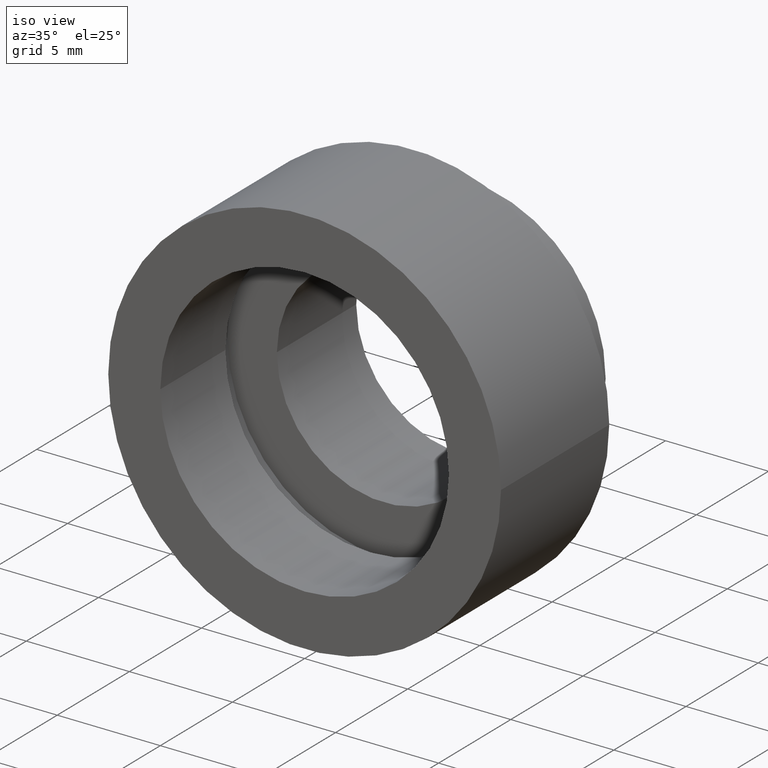
[diagram: clean part render]
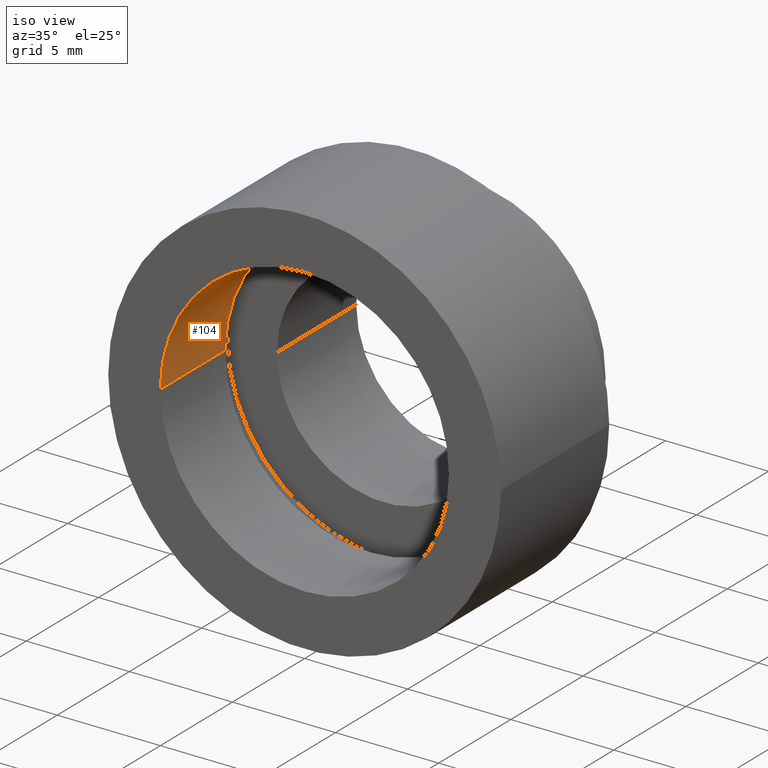
[diagram: same view with one face highlighted and labeled with its STEP entity id]
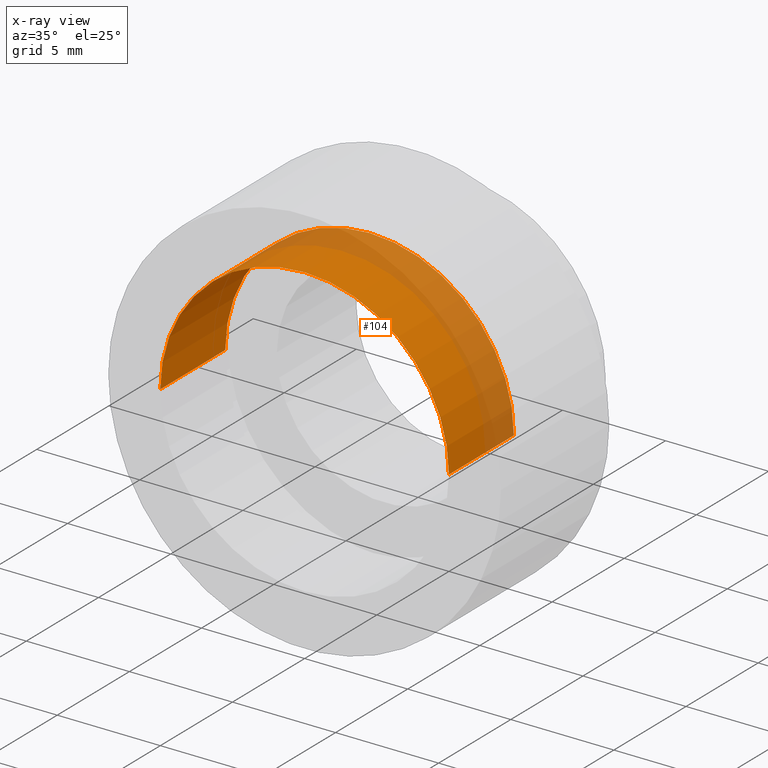
[diagram: x-ray of the same camera — body ghosted, the highlighted face saturated]
A machine part, iso view. The second image highlights one B-rep face of the part: STEP entity #104.
The next image is the same camera in x-ray: the body ghosted, the highlighted face saturated — about 36% of this face is hidden behind the body in this view.
In plain terms, the highlighted cylindrical surface (partial cylindrical patch) has radius 7 mm, axis along (-0, 1, -0).
Its self-contained STEP definition (entity closure, byte-faithful):
#20 = CARTESIAN_POINT ( 'NONE',  ( 2.067940818438636100E-015, 0.0000000000000000000, 0.0000000000000000000 ) ) ;
#32 = CARTESIAN_POINT ( 'NONE',  ( 0.0000000000000000000, 16.88601823708207700, 0.0000000000000000000 ) ) ;
#57 = DIRECTION ( 'NONE',  ( -1.224646799147351000E-016, 1.000000000000000000, -0.0000000000000000000 ) ) ;
#89 = EDGE_CURVE ( 'NONE', #326, #135, #225, .T. ) ;
#100 = CYLINDRICAL_SURFACE ( 'NONE', #167, 7.000000000000000000 ) ;
#104 = ADVANCED_FACE ( 'NONE', ( #398 ), #100, .F. ) ;
#105 = LINE ( 'NONE', #213, #431 ) ;
#116 = EDGE_CURVE ( 'NONE', #487, #135, #491, .T. ) ;
#135 = VERTEX_POINT ( 'NONE', #143 ) ;
#137 = CARTESIAN_POINT ( 'NONE',  ( 1.516849758822327900E-015, 4.500000000000000900, 0.0000000000000000000 ) ) ;
#143 = CARTESIAN_POINT ( 'NONE',  ( 7.000000000000001800, 4.500000000000001800, 8.572527594031473200E-016 ) ) ;
#153 = DIRECTION ( 'NONE',  ( -1.224646799147351000E-016, 1.000000000000000000, -0.0000000000000000000 ) ) ;
#165 = AXIS2_PLACEMENT_3D ( 'NONE', #20, #369, #168 ) ;
#167 = AXIS2_PLACEMENT_3D ( 'NONE', #32, #278, #470 ) ;
#168 = DIRECTION ( 'NONE',  ( -1.000000000000000000, -1.224646799147351000E-016, 0.0000000000000000000 ) ) ;
#194 = DIRECTION ( 'NONE',  ( -1.000000000000000000, -1.239088197126290800E-016, 0.0000000000000000000 ) ) ;
#213 = CARTESIAN_POINT ( 'NONE',  ( -7.000000000000000000, 16.88601823708207700, 0.0000000000000000000 ) ) ;
#215 = CARTESIAN_POINT ( 'NONE',  ( -6.999999999999998200, 4.500000000000000000, 0.0000000000000000000 ) ) ;
#225 = CIRCLE ( 'NONE', #524, 7.000000000000000000 ) ;
#245 = EDGE_LOOP ( 'NONE', ( #298, #415, #292, #384 ) ) ;
#276 = EDGE_CURVE ( 'NONE', #498, #326, #105, .T. ) ;
#278 = DIRECTION ( 'NONE',  ( -1.224646799147351000E-016, 1.000000000000000000, -0.0000000000000000000 ) ) ;
#292 = ORIENTED_EDGE ( 'NONE', *, *, #276, .T. ) ;
#298 = ORIENTED_EDGE ( 'NONE', *, *, #116, .F. ) ;
#326 = VERTEX_POINT ( 'NONE', #215 ) ;
#369 = DIRECTION ( 'NONE',  ( -1.224646799147351000E-016, 1.000000000000000000, -0.0000000000000000000 ) ) ;
#384 = ORIENTED_EDGE ( 'NONE', *, *, #89, .T. ) ;
#398 = FACE_OUTER_BOUND ( 'NONE', #245, .T. ) ;
#415 = ORIENTED_EDGE ( 'NONE', *, *, #467, .F. ) ;
#431 = VECTOR ( 'NONE', #57, 1000.000000000000000 ) ;
#448 = CARTESIAN_POINT ( 'NONE',  ( 7.000000000000001800, 8.572527594031457400E-016, 8.572527594031473200E-016 ) ) ;
#467 = EDGE_CURVE ( 'NONE', #498, #487, #589, .T. ) ;
#470 = DIRECTION ( 'NONE',  ( -1.000000000000000000, 0.0000000000000000000, 0.0000000000000000000 ) ) ;
#471 = DIRECTION ( 'NONE',  ( -1.224646799147351000E-016, 1.000000000000000000, -0.0000000000000000000 ) ) ;
#487 = VERTEX_POINT ( 'NONE', #448 ) ;
#491 = LINE ( 'NONE', #531, #558 ) ;
#498 = VERTEX_POINT ( 'NONE', #560 ) ;
#524 = AXIS2_PLACEMENT_3D ( 'NONE', #137, #471, #194 ) ;
#531 = CARTESIAN_POINT ( 'NONE',  ( 7.000000000000000000, 16.88601823708207700, 8.572527594031473200E-016 ) ) ;
#558 = VECTOR ( 'NONE', #153, 1000.000000000000000 ) ;
#560 = CARTESIAN_POINT ( 'NONE',  ( -6.999999999999998200, -8.572527594031457400E-016, 0.0000000000000000000 ) ) ;
#589 = CIRCLE ( 'NONE', #165, 7.000000000000000000 ) ;